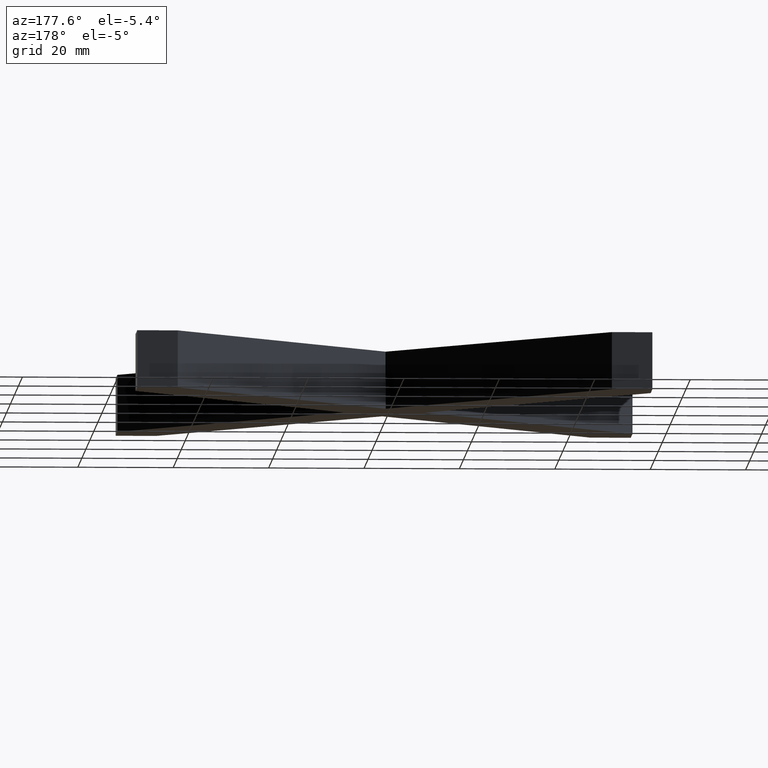
[diagram: clean part render]
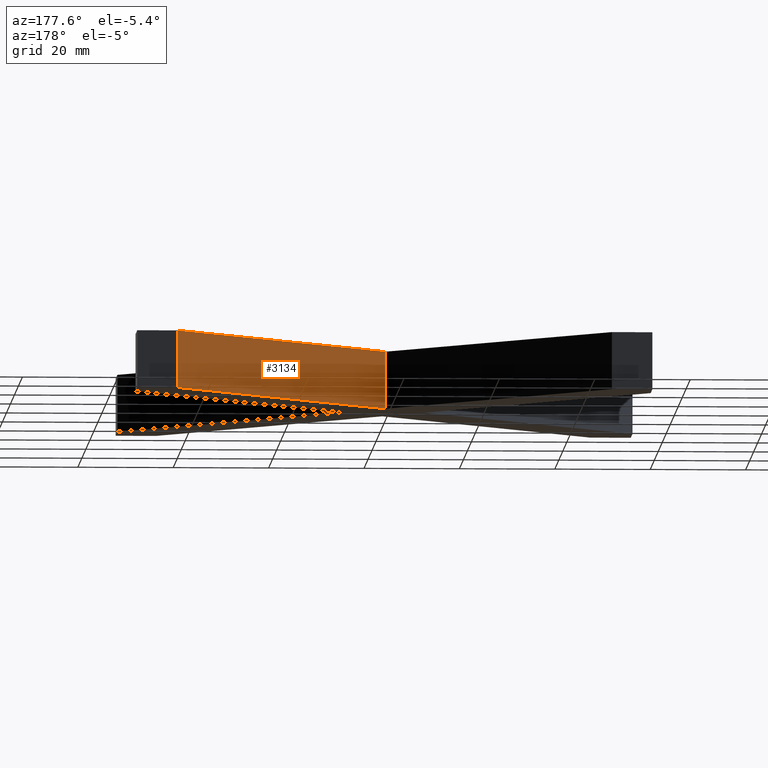
[diagram: same view with one face highlighted and labeled with its STEP entity id]
A machine part, auxiliary view. The second image highlights one B-rep face of the part: STEP entity #3134.
In plain terms, the highlighted planar face has unit normal (0.7071, -0.7071, 0).
Its self-contained STEP definition (entity closure, byte-faithful):
#54 = DIRECTION ( 'NONE',  ( -0.000000000000000000, -0.000000000000000000, -1.000000000000000000 ) ) ;
#468 = VERTEX_POINT ( 'NONE', #7399 ) ;
#644 = VECTOR ( 'NONE', #2738, 1000.000000000000000 ) ;
#684 = CARTESIAN_POINT ( 'NONE',  ( 45.51471862576144645, 53.99999999999999289, 12.00000000000000000 ) ) ;
#841 = ORIENTED_EDGE ( 'NONE', *, *, #11143, .F. ) ;
#907 = VECTOR ( 'NONE', #54, 1000.000000000000000 ) ;
#1301 = DIRECTION ( 'NONE',  ( -0.000000000000000000, -0.000000000000000000, -1.000000000000000000 ) ) ;
#1394 = LINE ( 'NONE', #11746, #3353 ) ;
#1416 = VECTOR ( 'NONE', #6092, 1000.000000000000114 ) ;
#1592 = EDGE_CURVE ( 'NONE', #4579, #14538, #6638, .T. ) ;
#1638 = CARTESIAN_POINT ( 'NONE',  ( 0.03535533905932217169, 8.520636713297895071, 6.000000000000000000 ) ) ;
#1896 = AXIS2_PLACEMENT_3D ( 'NONE', #13597, #3290, #12512 ) ;
#1910 = CARTESIAN_POINT ( 'NONE',  ( 0.03535533905932217169, 8.520636713297895071, 12.00000000000000000 ) ) ;
#2738 = DIRECTION ( 'NONE',  ( -0.000000000000000000, -0.000000000000000000, 1.000000000000000000 ) ) ;
#2760 = CARTESIAN_POINT ( 'NONE',  ( -5.343083831280126539E-15, 8.485281374238560659, 6.000000000000000000 ) ) ;
#2869 = CARTESIAN_POINT ( 'NONE',  ( 0.03535533905932217169, 8.520636713297895071, 6.000000000000000000 ) ) ;
#3134 = ADVANCED_FACE ( 'NONE', ( #6206 ), #11419, .F. ) ;
#3290 = DIRECTION ( 'NONE',  ( 0.7071067811865473507, -0.7071067811865477948, 0.000000000000000000 ) ) ;
#3353 = VECTOR ( 'NONE', #12929, 1000.000000000000000 ) ;
#3580 = ORIENTED_EDGE ( 'NONE', *, *, #11081, .F. ) ;
#3732 = VERTEX_POINT ( 'NONE', #1910 ) ;
#4579 = VERTEX_POINT ( 'NONE', #2869 ) ;
#4681 = CARTESIAN_POINT ( 'NONE',  ( 45.51471862576144645, 53.99999999999999289, 12.00000000000000000 ) ) ;
#4844 = LINE ( 'NONE', #8095, #6097 ) ;
#4983 = EDGE_LOOP ( 'NONE', ( #12791, #9760, #3580, #5270, #6605, #841 ) ) ;
#5270 = ORIENTED_EDGE ( 'NONE', *, *, #13615, .T. ) ;
#5738 = EDGE_CURVE ( 'NONE', #12733, #468, #1394, .T. ) ;
#6092 = DIRECTION ( 'NONE',  ( -0.7071067811865556774, -0.7071067811865392461, -0.000000000000000000 ) ) ;
#6097 = VECTOR ( 'NONE', #1301, 1000.000000000000000 ) ;
#6206 = FACE_OUTER_BOUND ( 'NONE', #4983, .T. ) ;
#6577 = EDGE_CURVE ( 'NONE', #4579, #3732, #14145, .T. ) ;
#6605 = ORIENTED_EDGE ( 'NONE', *, *, #5738, .T. ) ;
#6610 = LINE ( 'NONE', #4681, #907 ) ;
#6638 = LINE ( 'NONE', #8207, #1416 ) ;
#7399 = CARTESIAN_POINT ( 'NONE',  ( -5.509374826798535559E-15, 8.485281374238564212, 0.000000000000000000 ) ) ;
#7635 = VERTEX_POINT ( 'NONE', #684 ) ;
#7861 = LINE ( 'NONE', #8849, #12490 ) ;
#8095 = CARTESIAN_POINT ( 'NONE',  ( -5.509374826798535559E-15, 8.485281374238564212, 12.00000000000000000 ) ) ;
#8207 = CARTESIAN_POINT ( 'NONE',  ( -0.03535533905933258003, 8.449926035179242234, 6.000000000000000000 ) ) ;
#8849 = CARTESIAN_POINT ( 'NONE',  ( -5.509374826798535559E-15, 8.485281374238564212, 12.00000000000000000 ) ) ;
#8994 = DIRECTION ( 'NONE',  ( -0.7071067811865477948, -0.7071067811865473507, -0.000000000000000000 ) ) ;
#9333 = CARTESIAN_POINT ( 'NONE',  ( 45.51471862576144645, 53.99999999999999289, 0.000000000000000000 ) ) ;
#9760 = ORIENTED_EDGE ( 'NONE', *, *, #6577, .T. ) ;
#11081 = EDGE_CURVE ( 'NONE', #7635, #3732, #7861, .T. ) ;
#11143 = EDGE_CURVE ( 'NONE', #14538, #468, #4844, .T. ) ;
#11419 = PLANE ( 'NONE',  #1896 ) ;
#11746 = CARTESIAN_POINT ( 'NONE',  ( -5.509374826798535559E-15, 8.485281374238564212, 0.000000000000000000 ) ) ;
#12490 = VECTOR ( 'NONE', #8994, 1000.000000000000000 ) ;
#12512 = DIRECTION ( 'NONE',  ( 0.7071067811865477948, 0.7071067811865473507, 0.000000000000000000 ) ) ;
#12733 = VERTEX_POINT ( 'NONE', #9333 ) ;
#12791 = ORIENTED_EDGE ( 'NONE', *, *, #1592, .F. ) ;
#12929 = DIRECTION ( 'NONE',  ( -0.7071067811865477948, -0.7071067811865473507, -0.000000000000000000 ) ) ;
#13597 = CARTESIAN_POINT ( 'NONE',  ( -5.509374826798535559E-15, 8.485281374238564212, 12.00000000000000000 ) ) ;
#13615 = EDGE_CURVE ( 'NONE', #7635, #12733, #6610, .T. ) ;
#14145 = LINE ( 'NONE', #1638, #644 ) ;
#14538 = VERTEX_POINT ( 'NONE', #2760 ) ;